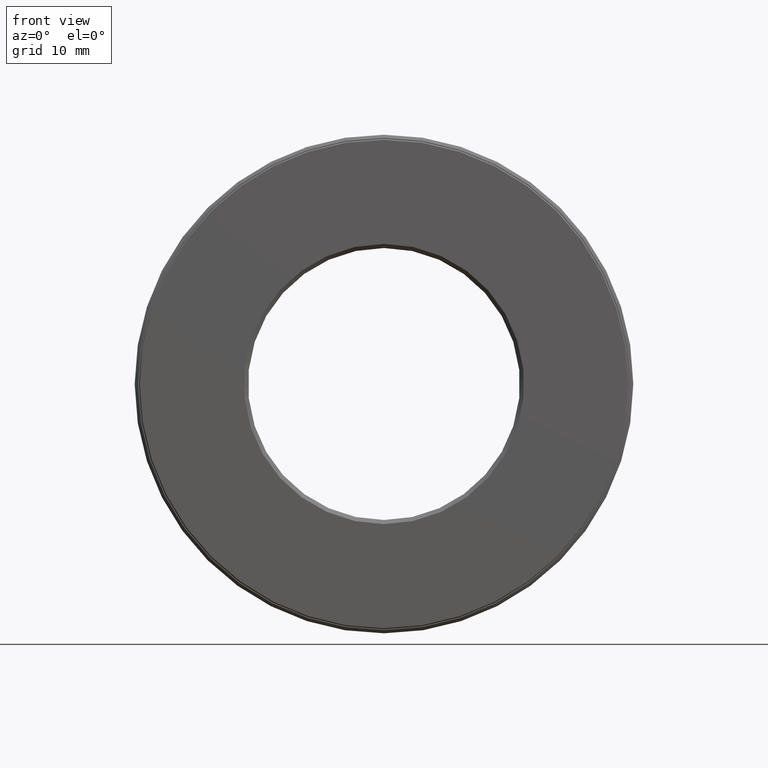
[diagram: clean part render]
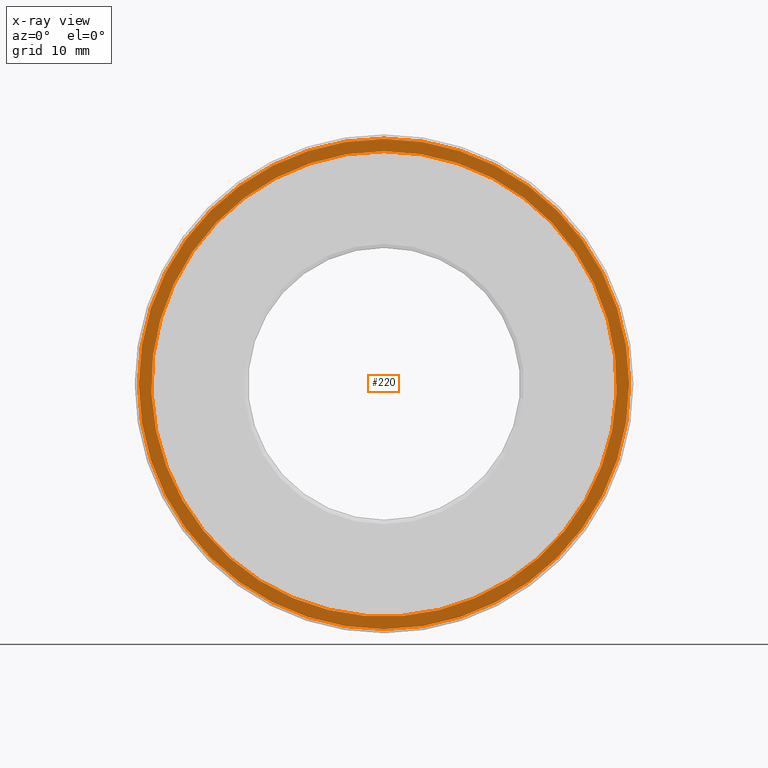
[diagram: x-ray — body ghosted, one internal face saturated and labeled with its STEP entity id]
A machine part, front view, then the same camera in x-ray: the body is ghosted and one INTERNAL B-rep face — a face not visible from any outside direction — is saturated and labeled: STEP entity #220.
In plain terms, the highlighted planar face has unit normal (-0, 1, 0).
Its self-contained STEP definition (entity closure, byte-faithful):
#4 = CARTESIAN_POINT ( 'NONE',  ( 0.0000000000000000000, 0.9024999999999999700, 0.0000000000000000000 ) ) ;
#10 = ORIENTED_EDGE ( 'NONE', *, *, #21, .T. ) ;
#13 = EDGE_CURVE ( 'NONE', #526, #526, #366, .T. ) ;
#21 = EDGE_CURVE ( 'NONE', #246, #246, #123, .T. ) ;
#22 = CARTESIAN_POINT ( 'NONE',  ( 0.0000000000000000000, 0.9024999999999999700, 0.0000000000000000000 ) ) ;
#60 = AXIS2_PLACEMENT_3D ( 'NONE', #4, #340, #102 ) ;
#91 = FACE_BOUND ( 'NONE', #586, .T. ) ;
#102 = DIRECTION ( 'NONE',  ( 0.0000000000000000000, 0.0000000000000000000, 1.000000000000000000 ) ) ;
#111 = CARTESIAN_POINT ( 'NONE',  ( 0.0000000000000000000, 0.9024999999999999700, 0.0000000000000000000 ) ) ;
#113 = DIRECTION ( 'NONE',  ( -0.0000000000000000000, 1.000000000000000000, -0.0000000000000000000 ) ) ;
#119 = DIRECTION ( 'NONE',  ( 0.0000000000000000000, 0.0000000000000000000, 1.000000000000000000 ) ) ;
#123 = CIRCLE ( 'NONE', #433, 1.123125000000000200 ) ;
#155 = AXIS2_PLACEMENT_3D ( 'NONE', #111, #211, #532 ) ;
#211 = DIRECTION ( 'NONE',  ( -0.0000000000000000000, 1.000000000000000000, -0.0000000000000000000 ) ) ;
#220 = ADVANCED_FACE ( 'NONE', ( #498, #91 ), #569, .F. ) ;
#246 = VERTEX_POINT ( 'NONE', #556 ) ;
#310 = ORIENTED_EDGE ( 'NONE', *, *, #13, .F. ) ;
#340 = DIRECTION ( 'NONE',  ( -0.0000000000000000000, 1.000000000000000000, 0.0000000000000000000 ) ) ;
#366 = CIRCLE ( 'NONE', #155, 1.183125000000000000 ) ;
#433 = AXIS2_PLACEMENT_3D ( 'NONE', #22, #113, #119 ) ;
#498 = FACE_OUTER_BOUND ( 'NONE', #606, .T. ) ;
#526 = VERTEX_POINT ( 'NONE', #601 ) ;
#532 = DIRECTION ( 'NONE',  ( 0.0000000000000000000, 0.0000000000000000000, 1.000000000000000000 ) ) ;
#556 = CARTESIAN_POINT ( 'NONE',  ( 0.0000000000000000000, 0.9024999999999999700, 1.123125000000000200 ) ) ;
#569 = PLANE ( 'NONE',  #60 ) ;
#586 = EDGE_LOOP ( 'NONE', ( #10 ) ) ;
#601 = CARTESIAN_POINT ( 'NONE',  ( 0.0000000000000000000, 0.9024999999999999700, 1.183125000000000000 ) ) ;
#606 = EDGE_LOOP ( 'NONE', ( #310 ) ) ;